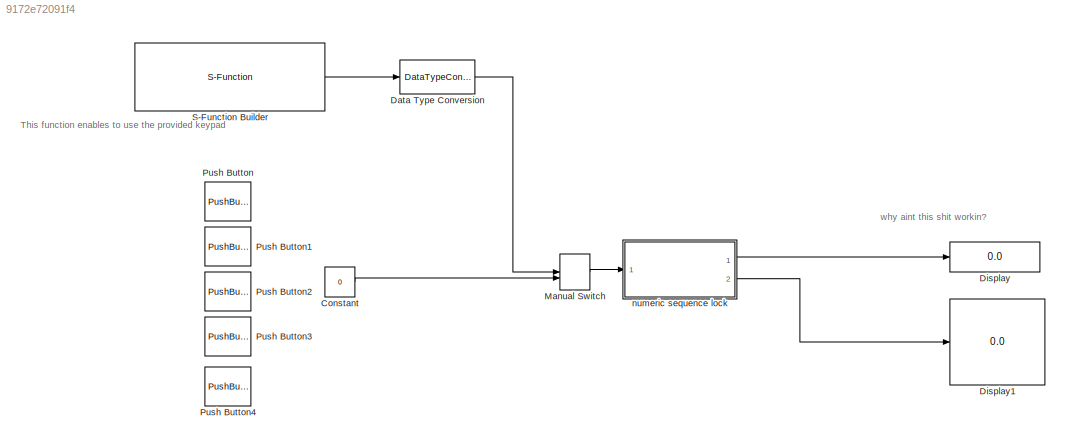
MODEL slx_9172e72091f4
KIND model
CONFIG AbsTol = auto
CONFIG EnableMultiTasking = on
CONFIG FixedStep = 0.01
CONFIG MaxStep = auto
CONFIG MinStep = auto
CONFIG RelTol = 1e-3
CONFIG SampleTimeConstraint = Unconstrained
CONFIG Solver = ode1
CONFIG SolverName = ode1
CONFIG StartTime = 0.0
CONFIG StopTime = inf
BLOCK [Constant] Constant
  Value = 0
BLOCK [DataTypeConversion] Data Type Conversion
  OutDataTypeStr = uint8
  RndMeth = Floor
  SaturateOnIntegerOverflow = off
BLOCK [Display] Display
  Decimation = 1
  Ports = [1]
BLOCK [Display] Display1
  Decimation = 1
  Ports = [1]
BLOCK [ManualSwitch] Manual Switch
BLOCK [PushButtonBlock] Push Button
  ButtonText = 1
  OnValue = 49
  WebBlockId = 123
BLOCK [PushButtonBlock] Push Button1
  ButtonText = 2
  OnValue = 50
  WebBlockId = 124
BLOCK [PushButtonBlock] Push Button2
  ButtonText = *
  OnValue = 42
  WebBlockId = 125
BLOCK [PushButtonBlock] Push Button3
  ButtonText = #
  OnValue = 35
  WebBlockId = 126
BLOCK [PushButtonBlock] Push Button4
  ButtonText = /
  OnValue = 47
  WebBlockId = 127
BLOCK [S-Function] S-Function Builder
  CopyFcn = set_param(gcbh,'LinkStatus','none')
  EnableBusSupport = off
  FunctionName = keypad_sfcn
  InitFcn = try, set_param(gcb,'FunctionName','keypad_sfcn'), end
  OpenFcn = sfunctionwizard(gcbh)
  Ports = [0, 1]
  PreSaveFcn = try, set_param(gcb,'FunctionName','keypad_sfcn'), end
  SFcnIsStateOwnerBlock = off
  SFunctionDeploymentMode = off
  SFunctionModules = keypad_sfcn_wrapper
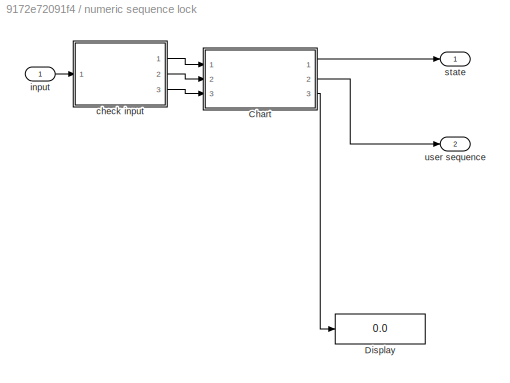
BLOCK [SubSystem] numeric sequence lock
  Ports = [1, 2]
  RequestExecContextInheritance = off
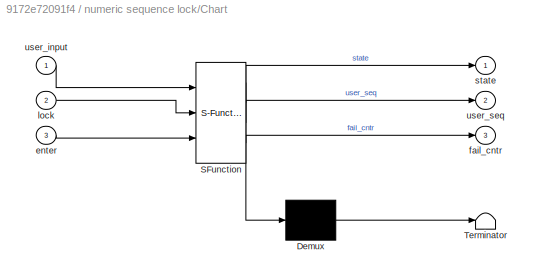
BLOCK [SubSystem] numeric sequence lock/Chart
  ErrorFcn = Stateflow.Translate.translate
  PermitHierarchicalResolution = ExplicitOnly
  Ports = [3, 3]
  RequestExecContextInheritance = off
  SFBlockType = Chart
  TreatAsAtomicUnit = on
BLOCK [Demux] numeric sequence lock/Chart/ Demux 
  Outputs = 1
  Ports = [1, 1]
BLOCK [S-Function] numeric sequence lock/Chart/ SFunction 
  EnableBusSupport = on
  FunctionName = sf_sfun
  PortCounts = [3 4]
  Ports = [3, 4]
  SFcnIsStateOwnerBlock = off
  SFunctionDeploymentMode = off
  Tag = Stateflow S-Function keypad_template 3
BLOCK [Terminator] numeric sequence lock/Chart/ Terminator 
BLOCK [Inport] numeric sequence lock/Chart/enter
  IconDisplay = Port number
  Port = 3
BLOCK [Outport] numeric sequence lock/Chart/fail_cntr
  IconDisplay = Port number
  Port = 3
BLOCK [Inport] numeric sequence lock/Chart/lock
  IconDisplay = Port number
  Port = 2
BLOCK [Outport] numeric sequence lock/Chart/state
  IconDisplay = Port number
BLOCK [Inport] numeric sequence lock/Chart/user_input
  IconDisplay = Port number
BLOCK [Outport] numeric sequence lock/Chart/user_seq
  IconDisplay = Port number
  Port = 2
BLOCK [Display] numeric sequence lock/Display
  Decimation = 1
  Ports = [1]
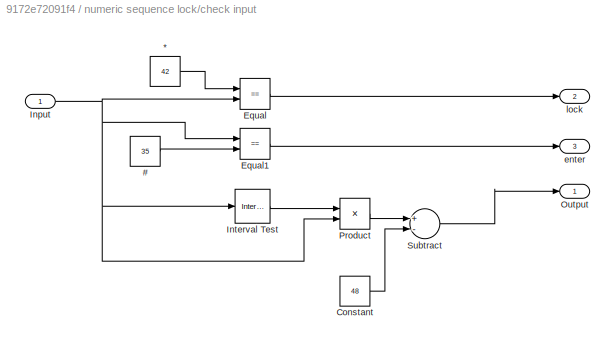
BLOCK [SubSystem] numeric sequence lock/check input
  Ports = [1, 3]
  RequestExecContextInheritance = off
BLOCK [Constant] numeric sequence lock/check input/#
  Value = 35
BLOCK [Constant] numeric sequence lock/check input/*
  Value = 42
BLOCK [Constant] numeric sequence lock/check input/Constant
  Value = 48
BLOCK [RelationalOperator] numeric sequence lock/check input/Equal
  InputSameDT = off
  Operator = ==
  OutDataTypeStr = boolean
  Ports = [2, 1]
  RndMeth = Simplest
BLOCK [RelationalOperator] numeric sequence lock/check input/Equal1
  InputSameDT = off
  Operator = ==
  OutDataTypeStr = boolean
  Ports = [2, 1]
  RndMeth = Simplest
BLOCK [Inport] numeric sequence lock/check input/Input
  IconDisplay = Port number
BLOCK [Reference] numeric sequence lock/check input/Interval Test   REF=simulink/Logic and Bit
Operations/Interval Test
  Ports = [1, 1]
  SourceBlock = simulink/Logic and Bit\nOperations/Interval Test
  SourceProductBaseCode = SL
  SourceProductName = Simulink
  SourceType = Interval Test
BLOCK [Outport] numeric sequence lock/check input/Output 
  IconDisplay = Port number
BLOCK [Product] numeric sequence lock/check input/Product
  InputSameDT = off
  OutDataTypeStr = Inherit: Inherit via internal rule
  Ports = [2, 1]
  RndMeth = Floor
  SaturateOnIntegerOverflow = off
BLOCK [Sum] numeric sequence lock/check input/Subtract
  InputSameDT = off
  Inputs = +-
  OutDataTypeStr = Inherit: Inherit via internal rule
  Ports = [2, 1]
  SaturateOnIntegerOverflow = off
BLOCK [Outport] numeric sequence lock/check input/enter
  IconDisplay = Port number
  Port = 3
BLOCK [Outport] numeric sequence lock/check input/lock
  IconDisplay = Port number
  Port = 2
BLOCK [Inport] numeric sequence lock/input
  IconDisplay = Port number
BLOCK [Outport] numeric sequence lock/state
  IconDisplay = Port number
BLOCK [Outport] numeric sequence lock/user sequence
  IconDisplay = Port number
  Port = 2
ANNOTATION (root): This function enables to use the provided keypad
ANNOTATION (root): why aint this shit workin?
LINE Constant:1 -> Manual Switch:2
LINE Data Type Conversion:1 -> Manual Switch:1
LINE Manual Switch:1 -> numeric sequence lock:1
LINE S-Function Builder:1 -> Data Type Conversion:1
LINE numeric sequence lock/Chart:1 -> numeric sequence lock/state:1
LINE numeric sequence lock/Chart:2 -> numeric sequence lock/user sequence:1
LINE numeric sequence lock/Chart:3 -> numeric sequence lock/Display:1
LINE numeric sequence lock/check input/#:1 -> numeric sequence lock/check input/Equal1:2
LINE numeric sequence lock/check input/*:1 -> numeric sequence lock/check input/Equal:1
LINE numeric sequence lock/check input/Constant:1 -> numeric sequence lock/check input/Subtract:2
LINE numeric sequence lock/check input/Equal1:1 -> numeric sequence lock/check input/enter:1
LINE numeric sequence lock/check input/Equal:1 -> numeric sequence lock/check input/lock:1
NET numeric sequence lock/check input/Input:1 -> numeric sequence lock/check input/Equal1:1, numeric sequence lock/check input/Equal:2, numeric sequence lock/check input/Interval Test :1, numeric sequence lock/check input/Product:2
LINE numeric sequence lock/check input/Interval Test :1 -> numeric sequence lock/check input/Product:1
LINE numeric sequence lock/check input/Product:1 -> numeric sequence lock/check input/Subtract:1
LINE numeric sequence lock/check input/Subtract:1 -> numeric sequence lock/check input/Output :1
LINE numeric sequence lock/check input:1 -> numeric sequence lock/Chart:1
LINE numeric sequence lock/check input:2 -> numeric sequence lock/Chart:2
LINE numeric sequence lock/check input:3 -> numeric sequence lock/Chart:3
LINE numeric sequence lock/input:1 -> numeric sequence lock/check input:1
LINE numeric sequence lock:1 -> Display:1
LINE numeric sequence lock:2 -> Display1:1
note: NET lines group one-source signal fan-out (src -> all destinations, sorted); 1:1 wires keep LINE
CHART numeric sequence lock/Chart states=8 transitions=15
  STATE_LABEL 'INIT\nstate = States.INIT\nsequence_length = 4\nfail_cntr = 0 %counts failed attemps\nseq_key = [1;1;1;1] %change this to change lock combination'
  STATE_LABEL 'LOCKED\nentry:\nstate = States.LOCKED\nuser_seq = [0;0;0;0] %resetting input\ni = 0 %reseting index\n%lock system\n'
  STATE_LABEL 'IDLE\nentry:\nstate = States.IDLE\n%lock system'
  STATE_LABEL 'READING\nentry:\nstate = States.READING\ni = i + 1 %increasing index\nuser_seq(i) = user_input\n'
  STATE_LABEL 'CHECK\nentry:\nstate = States.CHECK'
  STATE_LABEL 'UNLOCK\nentry:\nstate = States.UNLOCK\n%do something'
  STATE_LABEL 'WRONG_CODE\nentry:\nstate = States.WRONG_CODE\nfail_cntr = fail_cntr + 1'
  STATE_LABEL 'SYSTEM_LOCKDOWN\nentry:\nstate = States.SYSTEM_LOCKDOWN\n%todo: implement delay'
